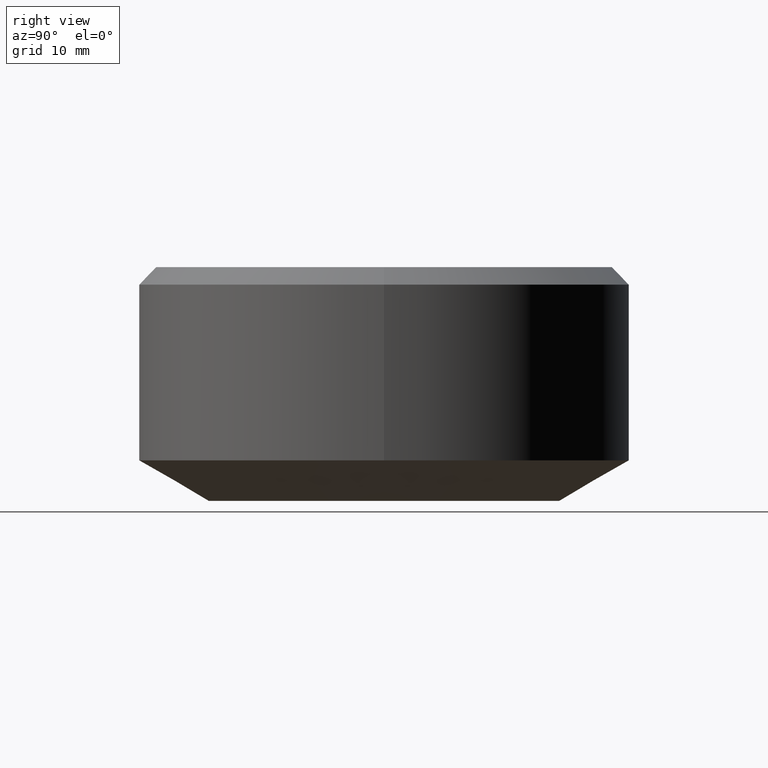
[diagram: clean part render]
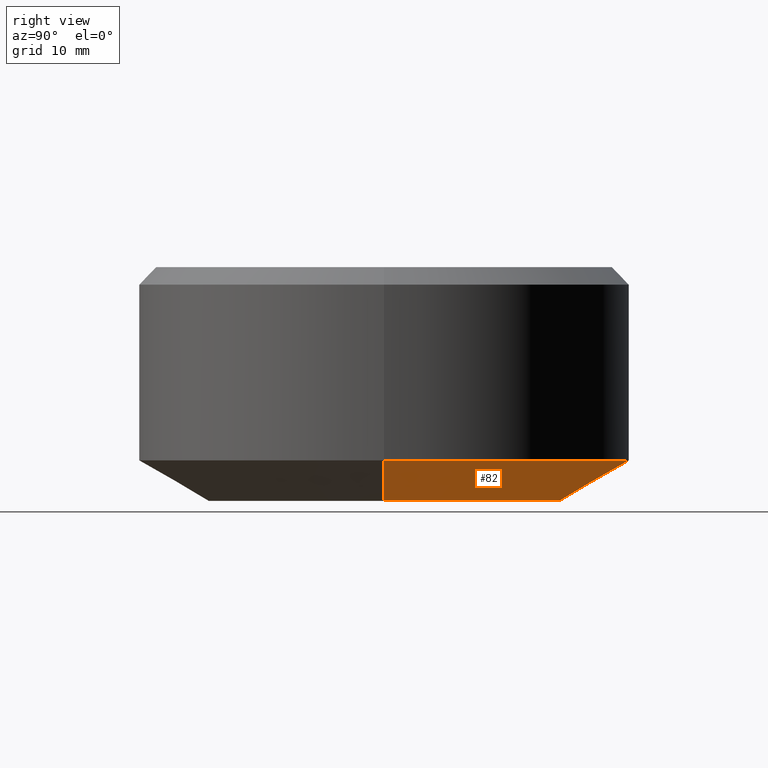
[diagram: same view with one face highlighted and labeled with its STEP entity id]
A machine part, right view. The second image highlights one B-rep face of the part: STEP entity #82.
In plain terms, the highlighted conical surface has half-angle 60 deg.
Its self-contained STEP definition (entity closure, byte-faithful):
#8 = DIRECTION ( 'NONE',  ( -0.0000000000000000000, -0.0000000000000000000, 1.000000000000000000 ) ) ;
#10 = DIRECTION ( 'NONE',  ( 1.000000000000000000, 0.0000000000000000000, 0.0000000000000000000 ) ) ;
#20 = VERTEX_POINT ( 'NONE', #46 ) ;
#22 = DIRECTION ( 'NONE',  ( 0.8660254037844397100, 0.0000000000000000000, 0.4999999999999979500 ) ) ;
#30 = CIRCLE ( 'NONE', #33, 15.00000000000000000 ) ;
#32 = LINE ( 'NONE', #280, #248 ) ;
#33 = AXIS2_PLACEMENT_3D ( 'NONE', #177, #8, #41 ) ;
#39 = CARTESIAN_POINT ( 'NONE',  ( -15.00000000000000000, 1.836970198721029600E-015, -10.00000000000000200 ) ) ;
#41 = DIRECTION ( 'NONE',  ( 1.000000000000000000, 0.0000000000000000000, 0.0000000000000000000 ) ) ;
#45 = ORIENTED_EDGE ( 'NONE', *, *, #347, .F. ) ;
#46 = CARTESIAN_POINT ( 'NONE',  ( 15.00000000000000000, 0.0000000000000000000, -10.00000000000000200 ) ) ;
#68 = DIRECTION ( 'NONE',  ( 1.000000000000000000, 0.0000000000000000000, 0.0000000000000000000 ) ) ;
#81 = CARTESIAN_POINT ( 'NONE',  ( -15.00000000000000000, 2.204364238465235400E-015, -10.00000000000000200 ) ) ;
#82 = ADVANCED_FACE ( 'NONE', ( #99 ), #336, .T. ) ;
#90 = DIRECTION ( 'NONE',  ( -0.0000000000000000000, -0.0000000000000000000, 1.000000000000000000 ) ) ;
#99 = FACE_OUTER_BOUND ( 'NONE', #131, .T. ) ;
#100 = VERTEX_POINT ( 'NONE', #216 ) ;
#114 = CARTESIAN_POINT ( 'NONE',  ( 21.00000000000000000, 0.0000000000000000000, -6.535898384862265200 ) ) ;
#119 = CARTESIAN_POINT ( 'NONE',  ( 0.0000000000000000000, 0.0000000000000000000, -6.535898384862265200 ) ) ;
#121 = ORIENTED_EDGE ( 'NONE', *, *, #278, .T. ) ;
#131 = EDGE_LOOP ( 'NONE', ( #321, #121, #345, #45 ) ) ;
#171 = CIRCLE ( 'NONE', #207, 21.00000000000000000 ) ;
#175 = VERTEX_POINT ( 'NONE', #81 ) ;
#177 = CARTESIAN_POINT ( 'NONE',  ( 0.0000000000000000000, 0.0000000000000000000, -10.00000000000000200 ) ) ;
#178 = LINE ( 'NONE', #39, #315 ) ;
#207 = AXIS2_PLACEMENT_3D ( 'NONE', #119, #90, #10 ) ;
#212 = CARTESIAN_POINT ( 'NONE',  ( 0.0000000000000000000, 0.0000000000000000000, -10.00000000000000200 ) ) ;
#216 = CARTESIAN_POINT ( 'NONE',  ( -21.00000000000000000, 2.571758278209441700E-015, -6.535898384862265200 ) ) ;
#219 = EDGE_CURVE ( 'NONE', #331, #100, #171, .T. ) ;
#233 = EDGE_CURVE ( 'NONE', #20, #175, #30, .T. ) ;
#238 = DIRECTION ( 'NONE',  ( -0.8660254037844397100, 1.060575238724908100E-016, 0.4999999999999979500 ) ) ;
#248 = VECTOR ( 'NONE', #22, 1000.000000000000100 ) ;
#278 = EDGE_CURVE ( 'NONE', #175, #100, #178, .T. ) ;
#280 = CARTESIAN_POINT ( 'NONE',  ( 15.00000000000000000, 0.0000000000000000000, -10.00000000000000200 ) ) ;
#315 = VECTOR ( 'NONE', #238, 1000.000000000000100 ) ;
#320 = AXIS2_PLACEMENT_3D ( 'NONE', #212, #341, #68 ) ;
#321 = ORIENTED_EDGE ( 'NONE', *, *, #233, .T. ) ;
#331 = VERTEX_POINT ( 'NONE', #114 ) ;
#336 = CONICAL_SURFACE ( 'NONE', #320, 15.00000000000000000, 1.047197551196600100 ) ;
#341 = DIRECTION ( 'NONE',  ( -0.0000000000000000000, -0.0000000000000000000, 1.000000000000000000 ) ) ;
#345 = ORIENTED_EDGE ( 'NONE', *, *, #219, .F. ) ;
#347 = EDGE_CURVE ( 'NONE', #20, #331, #32, .T. ) ;